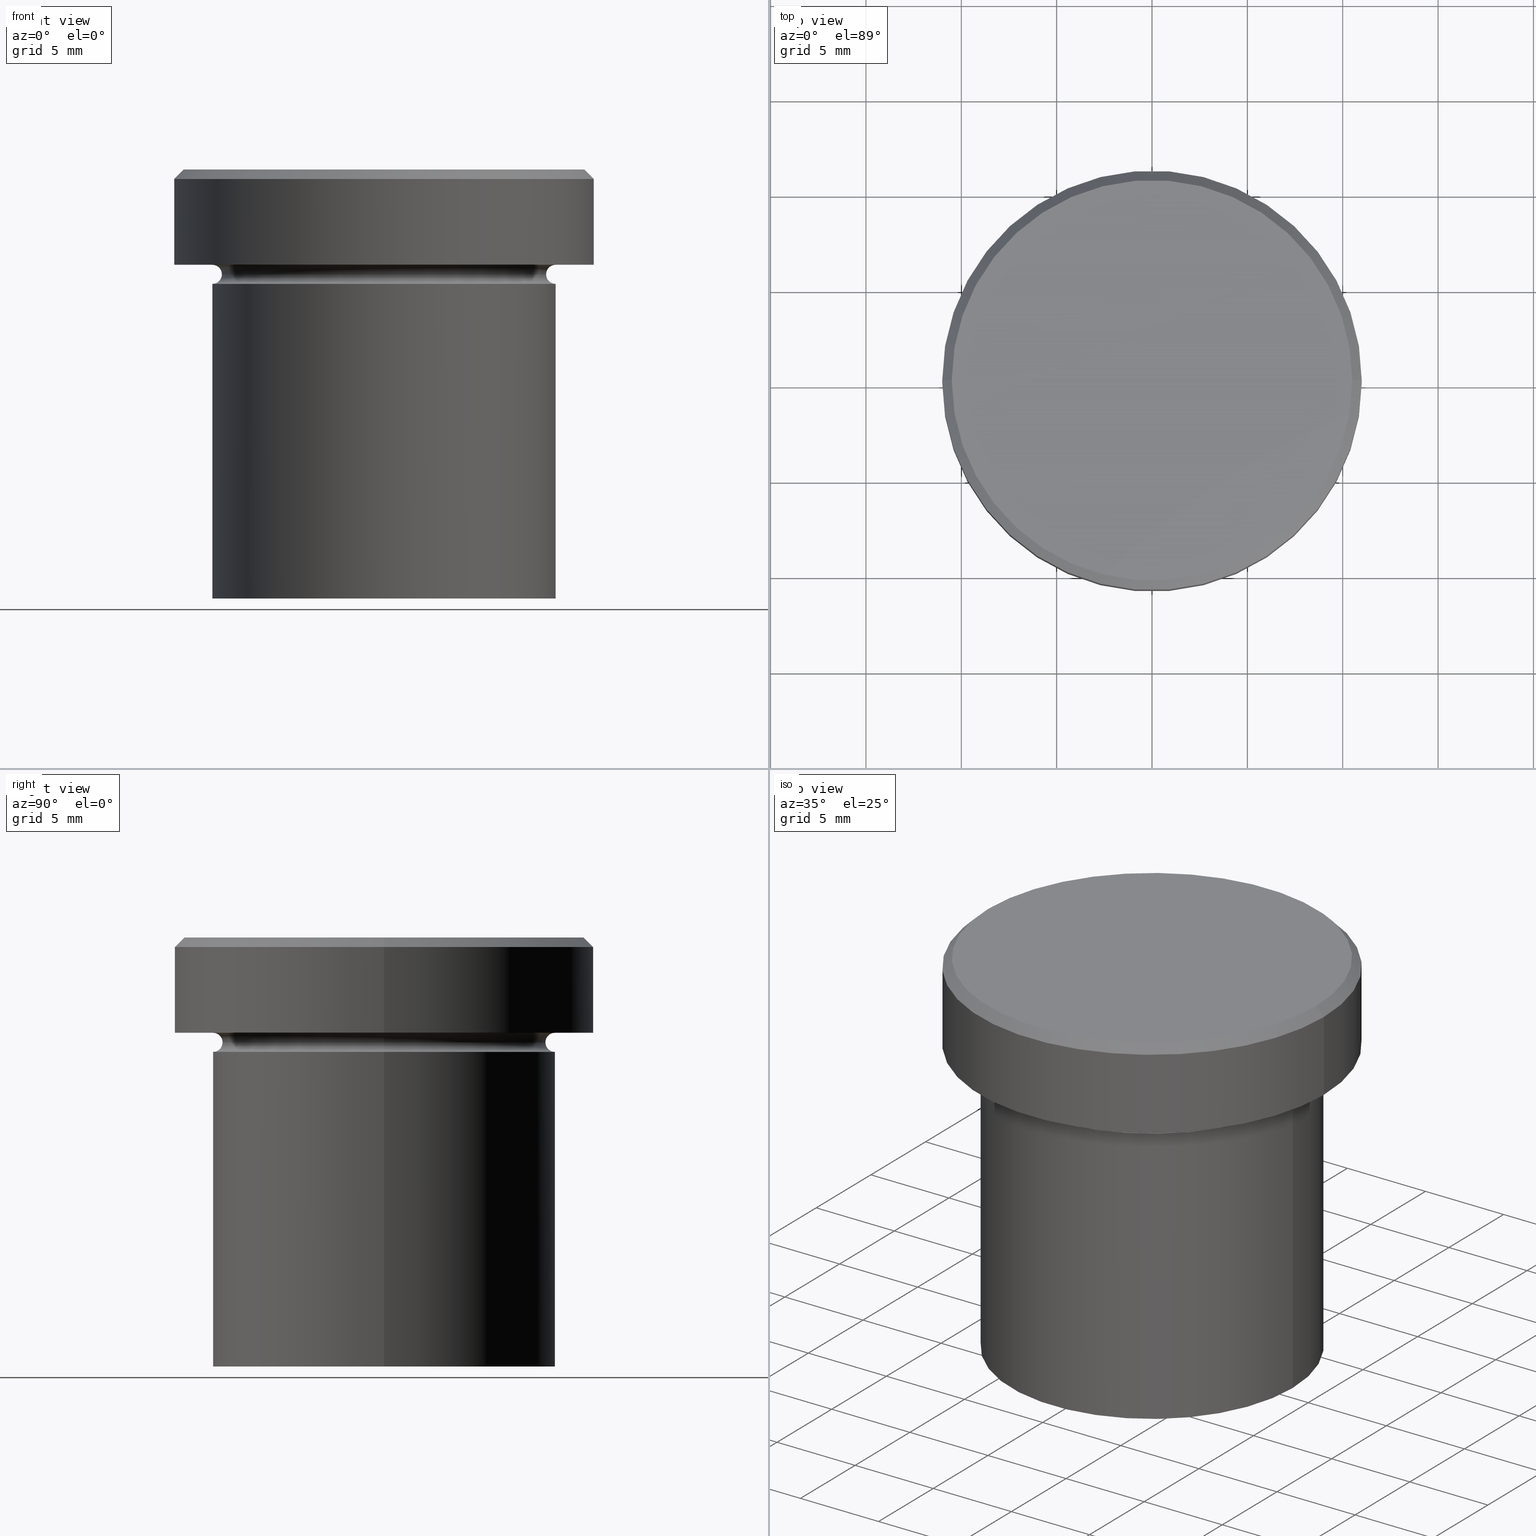
[diagram: canonical four-view strip — front | top / right | iso, engineering-drawing reading convention]
A machine part, canonical four-view strip (front | top / right | iso — engineering-drawing reading convention). The complete STEP part file that produces these views, byte-faithful:
ISO-10303-21;
HEADER;
FILE_DESCRIPTION (( 'STEP AP203' ),
    '1' );
FILE_NAME ('1125.STEP',
    '2024-01-02T22:02:27',
    ( '' ),
    ( '' ),
    'SwSTEP 2.0',
    'SolidWorks 2019',
    '' );
FILE_SCHEMA (( 'CONFIG_CONTROL_DESIGN' ));
ENDSEC;

DATA;
#1 = CARTESIAN_POINT ( 'NONE',  ( 0.000000000000000000, 0.000000000000000000, -5.000000000000000000 ) ) ;
#2 = PRODUCT_DEFINITION_FORMATION_WITH_SPECIFIED_SOURCE ( 'LIBOVOLN�', '', #42, .NOT_KNOWN. ) ;
#3 = LOCAL_TIME ( 23, 2, 27.00000000000000000, #113 ) ;
#4 = VERTEX_POINT ( 'NONE', #231 ) ;
#5 = VECTOR ( 'NONE', #340, 1000.000000000000000 ) ;
#6 = CARTESIAN_POINT ( 'NONE',  ( 9.000000000000000000, 0.000000000000000000, -22.50000000000000000 ) ) ;
#7 = DIRECTION ( 'NONE',  ( -0.000000000000000000, -0.000000000000000000, 1.000000000000000000 ) ) ;
#8 = CC_DESIGN_PERSON_AND_ORGANIZATION_ASSIGNMENT ( #116, #314, ( #195 ) ) ;
#9 = ORIENTED_EDGE ( 'NONE', *, *, #115, .T. ) ;
#10 = DIRECTION ( 'NONE',  ( 1.000000000000000000, 0.000000000000000000, 0.000000000000000000 ) ) ;
#11 = AXIS2_PLACEMENT_3D ( 'NONE', #70, #57, #294 ) ;
#12 = CARTESIAN_POINT ( 'NONE',  ( 10.49999999999999822, 1.316495309083404420E-15, 0.000000000000000000 ) ) ;
#13 = EDGE_CURVE ( 'NONE', #233, #80, #265, .T. ) ;
#14 = CARTESIAN_POINT ( 'NONE',  ( -11.00000000000000000, 1.347111479062088405E-15, -0.5000000000000004441 ) ) ;
#15 = CARTESIAN_POINT ( 'NONE',  ( 9.000000000000000000, 0.000000000000000000, 0.000000000000000000 ) ) ;
#16 = LINE ( 'NONE', #191, #5 ) ;
#17 = ORIENTED_EDGE ( 'NONE', *, *, #164, .T. ) ;
#18 = LOCAL_TIME ( 23, 2, 27.00000000000000000, #310 ) ;
#19 = CARTESIAN_POINT ( 'NONE',  ( 0.000000000000000000, 0.000000000000000000, 0.000000000000000000 ) ) ;
#20 = CARTESIAN_POINT ( 'NONE',  ( 11.00000000000000000, 0.000000000000000000, -5.000000000000000000 ) ) ;
#21 = DIRECTION ( 'NONE',  ( 1.000000000000000000, 0.000000000000000000, 0.000000000000000000 ) ) ;
#22 = CARTESIAN_POINT ( 'NONE',  ( -10.49999999999999822, 0.000000000000000000, 0.000000000000000000 ) ) ;
#23 = CYLINDRICAL_SURFACE ( 'NONE', #259, 9.000000000000000000 ) ;
#24 = EDGE_LOOP ( 'NONE', ( #72, #52 ) ) ;
#25 = CIRCLE ( 'NONE', #223, 9.000000000000000000 ) ;
#26 = ADVANCED_FACE ( 'NONE', ( #197 ), #406, .F. ) ;
#27 = EDGE_LOOP ( 'NONE', ( #56, #158 ) ) ;
#28 = DATE_AND_TIME ( #321, #39 ) ;
#29 = CONICAL_SURFACE ( 'NONE', #304, 10.49999999999999822, 0.7853981633974482790 ) ;
#30 = CARTESIAN_POINT ( 'NONE',  ( -8.499999999999998224, 1.071565949253933927E-15, -5.500000000000000000 ) ) ;
#31 = ORIENTED_EDGE ( 'NONE', *, *, #94, .F. ) ;
#32 = CARTESIAN_POINT ( 'NONE',  ( 0.000000000000000000, 0.000000000000000000, -22.50000000000000000 ) ) ;
#33 = DIRECTION ( 'NONE',  ( -1.000000000000000000, 0.000000000000000000, 0.000000000000000000 ) ) ;
#34 = CARTESIAN_POINT ( 'NONE',  ( -9.000000000000000000, 1.102182119232617714E-15, -5.500000000000000000 ) ) ;
#35 = AXIS2_PLACEMENT_3D ( 'NONE', #34, #334, #159 ) ;
#36 = ADVANCED_FACE ( 'NONE', ( #58 ), #29, .T. ) ;
#37 = ORIENTED_EDGE ( 'NONE', *, *, #317, .T. ) ;
#38 = PLANE ( 'NONE',  #397 ) ;
#39 = LOCAL_TIME ( 23, 2, 27.00000000000000000, #152 ) ;
#40 = DIRECTION ( 'NONE',  ( 1.000000000000000000, 0.000000000000000000, 0.000000000000000000 ) ) ;
#41 = EDGE_LOOP ( 'NONE', ( #205, #126, #370, #341 ) ) ;
#42 = PRODUCT ( '1125', '1125', '', ( #211 ) ) ;
#43 = FACE_OUTER_BOUND ( 'NONE', #145, .T. ) ;
#44 = DIRECTION ( 'NONE',  ( -0.000000000000000000, -0.000000000000000000, 1.000000000000000000 ) ) ;
#45 = EDGE_CURVE ( 'NONE', #80, #202, #141, .T. ) ;
#46 = CARTESIAN_POINT ( 'NONE',  ( -9.000000000000000000, 0.000000000000000000, -4.999999999999999112 ) ) ;
#47 = PERSON_AND_ORGANIZATION_ROLE ( 'creator' ) ;
#48 = DIRECTION ( 'NONE',  ( 0.000000000000000000, 0.000000000000000000, -1.000000000000000000 ) ) ;
#49 = AXIS2_PLACEMENT_3D ( 'NONE', #391, #104, #354 ) ;
#50 = APPLICATION_PROTOCOL_DEFINITION ( 'international standard', 'config_control_design', 1994, #103 ) ;
#51 = CARTESIAN_POINT ( 'NONE',  ( 0.000000000000000000, 0.000000000000000000, 0.000000000000000000 ) ) ;
#52 = ORIENTED_EDGE ( 'NONE', *, *, #303, .T. ) ;
#53 = CIRCLE ( 'NONE', #144, 0.5000000000000004441 ) ;
#54 = ORIENTED_EDGE ( 'NONE', *, *, #76, .F. ) ;
#55 = EDGE_CURVE ( 'NONE', #288, #382, #407, .T. ) ;
#56 = ORIENTED_EDGE ( 'NONE', *, *, #401, .T. ) ;
#57 = DIRECTION ( 'NONE',  ( 0.000000000000000000, 0.000000000000000000, -1.000000000000000000 ) ) ;
#58 = FACE_OUTER_BOUND ( 'NONE', #41, .T. ) ;
#59 = AXIS2_PLACEMENT_3D ( 'NONE', #305, #278, #125 ) ;
#60 = FACE_OUTER_BOUND ( 'NONE', #372, .T. ) ;
#61 = EDGE_CURVE ( 'NONE', #189, #135, #212, .T. ) ;
#62 = CIRCLE ( 'NONE', #377, 8.499999999999998224 ) ;
#63 = DIRECTION ( 'NONE',  ( 0.000000000000000000, 0.000000000000000000, -1.000000000000000000 ) ) ;
#64 = CARTESIAN_POINT ( 'NONE',  ( -9.000000000000000000, 1.102182119232617714E-15, 0.000000000000000000 ) ) ;
#65 = DIRECTION ( 'NONE',  ( 1.000000000000000000, 0.000000000000000000, 0.000000000000000000 ) ) ;
#66 = EDGE_CURVE ( 'NONE', #213, #135, #133, .T. ) ;
#67 = VECTOR ( 'NONE', #364, 1000.000000000000000 ) ;
#68 = CARTESIAN_POINT ( 'NONE',  ( 0.000000000000000000, 0.000000000000000000, 0.000000000000000000 ) ) ;
#69 = AXIS2_PLACEMENT_3D ( 'NONE', #296, #173, #150 ) ;
#70 = CARTESIAN_POINT ( 'NONE',  ( 0.000000000000000000, 0.000000000000000000, -0.5000000000000004441 ) ) ;
#71 = COORDINATED_UNIVERSAL_TIME_OFFSET ( 1, 0, .AHEAD. ) ;
#72 = ORIENTED_EDGE ( 'NONE', *, *, #98, .T. ) ;
#73 = ORIENTED_EDGE ( 'NONE', *, *, #287, .T. ) ;
#74 = CARTESIAN_POINT ( 'NONE',  ( 0.000000000000000000, 0.000000000000000000, 0.000000000000000000 ) ) ;
#75 = AXIS2_PLACEMENT_3D ( 'NONE', #381, #295, #21 ) ;
#76 = EDGE_CURVE ( 'NONE', #90, #213, #16, .T. ) ;
#77 = AXIS2_PLACEMENT_3D ( 'NONE', #96, #63, #33 ) ;
#78 = CARTESIAN_POINT ( 'NONE',  ( 9.000000000000000000, 0.000000000000000000, -5.500000000000000000 ) ) ;
#79 = DIRECTION ( 'NONE',  ( 1.000000000000000000, 0.000000000000000000, 0.000000000000000000 ) ) ;
#80 = VERTEX_POINT ( 'NONE', #83 ) ;
#81 = APPROVAL_STATUS ( 'not_yet_approved' ) ;
#82 = CARTESIAN_POINT ( 'NONE',  ( -9.000000000000000000, 1.102182119232617714E-15, -22.50000000000000000 ) ) ;
#83 = CARTESIAN_POINT ( 'NONE',  ( 8.499999999999998224, 0.000000000000000000, -5.500000000000000000 ) ) ;
#84 = APPROVAL ( #148, 'NEUR�EN�' ) ;
#85 = AXIS2_PLACEMENT_3D ( 'NONE', #163, #355, #48 ) ;
#86 = AXIS2_PLACEMENT_3D ( 'NONE', #260, #344, #349 ) ;
#87 = DIRECTION ( 'NONE',  ( -0.000000000000000000, -0.000000000000000000, 1.000000000000000000 ) ) ;
#88 = ORIENTED_EDGE ( 'NONE', *, *, #45, .T. ) ;
#89 = DIRECTION ( 'NONE',  ( 1.000000000000000000, 0.000000000000000000, 0.000000000000000000 ) ) ;
#90 = VERTEX_POINT ( 'NONE', #20 ) ;
#91 = DIRECTION ( 'NONE',  ( 1.000000000000000000, 0.000000000000000000, 0.000000000000000000 ) ) ;
#92 = CONICAL_SURFACE ( 'NONE', #162, 10.49999999999999822, 0.7853981633974482790 ) ;
#93 = ORIENTED_EDGE ( 'NONE', *, *, #98, .F. ) ;
#94 = EDGE_CURVE ( 'NONE', #80, #233, #62, .T. ) ;
#95 = CARTESIAN_POINT ( 'NONE',  ( 0.000000000000000000, 0.000000000000000000, 0.000000000000000000 ) ) ;
#96 = CARTESIAN_POINT ( 'NONE',  ( 0.000000000000000000, 0.000000000000000000, -5.500000000000000000 ) ) ;
#97 = FACE_OUTER_BOUND ( 'NONE', #339, .T. ) ;
#98 = EDGE_CURVE ( 'NONE', #153, #202, #25, .T. ) ;
#99 = ORIENTED_EDGE ( 'NONE', *, *, #55, .F. ) ;
#100 = DIRECTION ( 'NONE',  ( -0.7071067811865474617, 0.000000000000000000, -0.7071067811865474617 ) ) ;
#101 = AXIS2_PLACEMENT_3D ( 'NONE', #266, #87, #298 ) ;
#102 = CARTESIAN_POINT ( 'NONE',  ( 0.000000000000000000, 9.000000000000000000, -22.50000000000000000 ) ) ;
#103 = APPLICATION_CONTEXT ( 'configuration controlled 3d designs of mechanical parts and assemblies' ) ;
#104 = DIRECTION ( 'NONE',  ( 0.000000000000000000, 0.000000000000000000, -1.000000000000000000 ) ) ;
#105 = DATE_AND_TIME ( #165, #139 ) ;
#106 = ORIENTED_EDGE ( 'NONE', *, *, #379, .T. ) ;
#107 = DIRECTION ( 'NONE',  ( 0.000000000000000000, 0.000000000000000000, -1.000000000000000000 ) ) ;
#108 = AXIS2_PLACEMENT_3D ( 'NONE', #385, #250, #10 ) ;
#109 = PERSON_AND_ORGANIZATION_ROLE ( 'creator' ) ;
#110 = APPROVAL_PERSON_ORGANIZATION ( #394, #215, #337 ) ;
#111 = DIRECTION ( 'NONE',  ( -0.000000000000000000, -0.000000000000000000, 1.000000000000000000 ) ) ;
#112 = CLOSED_SHELL ( 'NONE', ( #307, #26, #232, #257, #177, #190, #239, #140, #352, #322, #360, #369, #36 ) ) ;
#113 = COORDINATED_UNIVERSAL_TIME_OFFSET ( 1, 0, .AHEAD. ) ;
#114 = DIRECTION ( 'NONE',  ( -0.000000000000000000, -0.000000000000000000, 1.000000000000000000 ) ) ;
#115 = EDGE_CURVE ( 'NONE', #233, #153, #263, .T. ) ;
#116 = PERSON_AND_ORGANIZATION ( #129, #168 ) ;
#117 = EDGE_CURVE ( 'NONE', #267, #189, #366, .T. ) ;
#118 = APPROVAL_PERSON_ORGANIZATION ( #318, #299, #291 ) ;
#119 = ORIENTED_EDGE ( 'NONE', *, *, #94, .T. ) ;
#120 = CARTESIAN_POINT ( 'NONE',  ( 0.000000000000000000, 0.000000000000000000, -5.500000000000000000 ) ) ;
#121 = MANIFOLD_SOLID_BREP ( 'Zkosen�1', #112 ) ;
#122 = ORIENTED_EDGE ( 'NONE', *, *, #281, .T. ) ;
#123 = ADVANCED_BREP_SHAPE_REPRESENTATION ( '1125', ( #121, #302 ), #174 ) ;
#124 = DIRECTION ( 'NONE',  ( 1.000000000000000000, 0.000000000000000000, 0.000000000000000000 ) ) ;
#125 = DIRECTION ( 'NONE',  ( 1.000000000000000000, 0.000000000000000000, 0.000000000000000000 ) ) ;
#126 = ORIENTED_EDGE ( 'NONE', *, *, #401, .F. ) ;
#127 = AXIS2_PLACEMENT_3D ( 'NONE', #204, #332, #209 ) ;
#128 = TOROIDAL_SURFACE ( 'NONE', #264, 9.000000000000000000, 0.5000000000000000000 ) ;
#129 = PERSON ( 'NEUR�EN�', 'NEUR�EN�', 'NEUR�EN�', ('NEUR�EN�'), ('NEUR�EN�'), ('NEUR�EN�') ) ;
#130 = CC_DESIGN_APPROVAL ( #84, ( #2 ) ) ;
#131 = DIRECTION ( 'NONE',  ( -1.000000000000000000, 0.000000000000000000, 0.000000000000000000 ) ) ;
#132 = CARTESIAN_POINT ( 'NONE',  ( 0.000000000000000000, 11.00000000000000000, -5.000000000000000000 ) ) ;
#133 = CIRCLE ( 'NONE', #11, 11.00000000000000000 ) ;
#134 = CC_DESIGN_DATE_AND_TIME_ASSIGNMENT ( #262, #199, ( #386 ) ) ;
#135 = VERTEX_POINT ( 'NONE', #14 ) ;
#136 = PERSON_AND_ORGANIZATION ( #129, #168 ) ;
#137 = FACE_OUTER_BOUND ( 'NONE', #356, .T. ) ;
#138 = PERSON_AND_ORGANIZATION ( #129, #168 ) ;
#139 = LOCAL_TIME ( 23, 2, 27.00000000000000000, #71 ) ;
#140 = ADVANCED_FACE ( 'NONE', ( #137 ), #320, .T. ) ;
#141 = CIRCLE ( 'NONE', #338, 0.5000000000000004441 ) ;
#142 = ORIENTED_EDGE ( 'NONE', *, *, #379, .F. ) ;
#143 = AXIS2_PLACEMENT_3D ( 'NONE', #19, #359, #89 ) ;
#144 = AXIS2_PLACEMENT_3D ( 'NONE', #78, #398, #258 ) ;
#145 = EDGE_LOOP ( 'NONE', ( #226, #297, #309, #311 ) ) ;
#146 = EDGE_LOOP ( 'NONE', ( #283, #88, #93, #149 ) ) ;
#147 = LINE ( 'NONE', #64, #155 ) ;
#148 = APPROVAL_STATUS ( 'not_yet_approved' ) ;
#149 = ORIENTED_EDGE ( 'NONE', *, *, #115, .F. ) ;
#150 = DIRECTION ( 'NONE',  ( 1.000000000000000000, 0.000000000000000000, 0.000000000000000000 ) ) ;
#151 = CC_DESIGN_PERSON_AND_ORGANIZATION_ASSIGNMENT ( #289, #47, ( #386 ) ) ;
#152 = COORDINATED_UNIVERSAL_TIME_OFFSET ( 1, 0, .AHEAD. ) ;
#153 = VERTEX_POINT ( 'NONE', #46 ) ;
#154 = DIRECTION ( 'NONE',  ( -0.000000000000000000, -0.000000000000000000, 1.000000000000000000 ) ) ;
#155 = VECTOR ( 'NONE', #182, 1000.000000000000000 ) ;
#156 = CARTESIAN_POINT ( 'NONE',  ( 0.000000000000000000, 0.000000000000000000, 0.000000000000000000 ) ) ;
#157 = PLANE ( 'NONE',  #301 ) ;
#158 = ORIENTED_EDGE ( 'NONE', *, *, #117, .T. ) ;
#159 = DIRECTION ( 'NONE',  ( -1.000000000000000000, 1.224646799147353454E-16, 0.000000000000000000 ) ) ;
#160 = APPROVAL_DATE_TIME ( #105, #299 ) ;
#161 = DIRECTION ( 'NONE',  ( -0.000000000000000000, -0.000000000000000000, 1.000000000000000000 ) ) ;
#162 = AXIS2_PLACEMENT_3D ( 'NONE', #68, #277, #240 ) ;
#163 = CARTESIAN_POINT ( 'NONE',  ( -9.000000000000000000, 0.000000000000000000, -5.500000000000000000 ) ) ;
#164 = EDGE_CURVE ( 'NONE', #382, #4, #292, .T. ) ;
#165 = CALENDAR_DATE ( 2024, 2, 1 ) ;
#166 = FACE_OUTER_BOUND ( 'NONE', #373, .T. ) ;
#167 =( NAMED_UNIT ( * ) PLANE_ANGLE_UNIT ( ) SI_UNIT ( $, .RADIAN. ) );
#168 = ORGANIZATION ( 'NEUR�EN�', 'NEUR�EN�', '' ) ;
#169 = DATE_AND_TIME ( #361, #18 ) ;
#170 = CALENDAR_DATE ( 2024, 2, 1 ) ;
#171 = DIRECTION ( 'NONE',  ( -1.000000000000000000, 0.000000000000000000, 0.000000000000000000 ) ) ;
#172 = PRODUCT_RELATED_PRODUCT_CATEGORY ( 'detail', '', ( #42 ) ) ;
#173 = DIRECTION ( 'NONE',  ( -0.000000000000000000, -0.000000000000000000, 1.000000000000000000 ) ) ;
#174 =( GEOMETRIC_REPRESENTATION_CONTEXT ( 3 ) GLOBAL_UNCERTAINTY_ASSIGNED_CONTEXT ( ( #241 ) ) GLOBAL_UNIT_ASSIGNED_CONTEXT ( ( #387, #167, #193 ) ) REPRESENTATION_CONTEXT ( 'NONE', 'WORKASPACE' ) );
#175 = DIRECTION ( 'NONE',  ( 0.7071067811865474617, 8.659560562354932858E-17, -0.7071067811865474617 ) ) ;
#176 = EDGE_LOOP ( 'NONE', ( #251, #323, #122, #365 ) ) ;
#177 = ADVANCED_FACE ( 'NONE', ( #60 ), #273, .T. ) ;
#178 = PLANE ( 'NONE',  #59 ) ;
#179 = VECTOR ( 'NONE', #175, 1000.000000000000114 ) ;
#180 = LINE ( 'NONE', #274, #179 ) ;
#181 = DIRECTION ( 'NONE',  ( -1.000000000000000000, 0.000000000000000000, 0.000000000000000000 ) ) ;
#182 = DIRECTION ( 'NONE',  ( -0.000000000000000000, -0.000000000000000000, 1.000000000000000000 ) ) ;
#183 = EDGE_CURVE ( 'NONE', #268, #90, #336, .T. ) ;
#184 = LINE ( 'NONE', #312, #285 ) ;
#185 = APPLICATION_PROTOCOL_DEFINITION ( 'international standard', 'config_control_design', 1994, #290 ) ;
#186 = CARTESIAN_POINT ( 'NONE',  ( -10.49999999999999822, 0.000000000000000000, 0.000000000000000000 ) ) ;
#187 = ORIENTED_EDGE ( 'NONE', *, *, #313, .T. ) ;
#188 = FACE_BOUND ( 'NONE', #24, .T. ) ;
#189 = VERTEX_POINT ( 'NONE', #22 ) ;
#190 = ADVANCED_FACE ( 'NONE', ( #97 ), #157, .T. ) ;
#191 = CARTESIAN_POINT ( 'NONE',  ( 11.00000000000000000, 0.000000000000000000, 0.000000000000000000 ) ) ;
#192 = TOROIDAL_SURFACE ( 'NONE', #127, 9.000000000000000000, 0.5000000000000000000 ) ;
#193 =( NAMED_UNIT ( * ) SI_UNIT ( $, .STERADIAN. ) SOLID_ANGLE_UNIT ( ) );
#194 = PRODUCT_DEFINITION_SHAPE ( 'NONE', 'NONE',  #386 ) ;
#195 = SECURITY_CLASSIFICATION ( '', '', #252 ) ;
#196 = CARTESIAN_POINT ( 'NONE',  ( 0.000000000000000000, 0.000000000000000000, -5.000000000000000000 ) ) ;
#197 = FACE_OUTER_BOUND ( 'NONE', #146, .T. ) ;
#198 = ORIENTED_EDGE ( 'NONE', *, *, #45, .F. ) ;
#199 = DATE_TIME_ROLE ( 'creation_date' ) ;
#200 = CIRCLE ( 'NONE', #101, 10.49999999999999822 ) ;
#201 = EDGE_CURVE ( 'NONE', #267, #213, #180, .T. ) ;
#202 = VERTEX_POINT ( 'NONE', #229 ) ;
#203 = CARTESIAN_POINT ( 'NONE',  ( 0.000000000000000000, 0.000000000000000000, -5.500000000000000000 ) ) ;
#204 = CARTESIAN_POINT ( 'NONE',  ( 0.000000000000000000, 0.000000000000000000, -5.500000000000000000 ) ) ;
#205 = ORIENTED_EDGE ( 'NONE', *, *, #201, .F. ) ;
#206 = FACE_OUTER_BOUND ( 'NONE', #176, .T. ) ;
#207 = DESIGN_CONTEXT ( 'detailed design', #103, 'design' ) ;
#208 = EDGE_LOOP ( 'NONE', ( #198, #119, #9, #315 ) ) ;
#209 = DIRECTION ( 'NONE',  ( 1.000000000000000000, 0.000000000000000000, 0.000000000000000000 ) ) ;
#210 = CC_DESIGN_PERSON_AND_ORGANIZATION_ASSIGNMENT ( #136, #109, ( #2 ) ) ;
#211 = MECHANICAL_CONTEXT ( 'NONE', #290, 'mechanical' ) ;
#212 = LINE ( 'NONE', #186, #351 ) ;
#213 = VERTEX_POINT ( 'NONE', #269 ) ;
#214 = LOCAL_TIME ( 23, 2, 27.00000000000000000, #222 ) ;
#215 = APPROVAL ( #383, 'NEUR�EN�' ) ;
#216 = ORIENTED_EDGE ( 'NONE', *, *, #313, .F. ) ;
#217 = ORIENTED_EDGE ( 'NONE', *, *, #244, .F. ) ;
#218 = FACE_OUTER_BOUND ( 'NONE', #300, .T. ) ;
#219 = AXIS2_PLACEMENT_3D ( 'NONE', #51, #392, #79 ) ;
#220 = AXIS2_PLACEMENT_3D ( 'NONE', #1, #378, #65 ) ;
#221 = CIRCLE ( 'NONE', #35, 0.5000000000000004441 ) ;
#222 = COORDINATED_UNIVERSAL_TIME_OFFSET ( 1, 0, .AHEAD. ) ;
#223 = AXIS2_PLACEMENT_3D ( 'NONE', #196, #44, #254 ) ;
#224 = CARTESIAN_POINT ( 'NONE',  ( -11.00000000000000000, 1.347111479062088405E-15, -5.000000000000000000 ) ) ;
#225 = APPROVAL_ROLE ( '' ) ;
#226 = ORIENTED_EDGE ( 'NONE', *, *, #117, .F. ) ;
#227 = CC_DESIGN_PERSON_AND_ORGANIZATION_ASSIGNMENT ( #350, #256, ( #2 ) ) ;
#228 = ORIENTED_EDGE ( 'NONE', *, *, #76, .T. ) ;
#229 = CARTESIAN_POINT ( 'NONE',  ( 9.000000000000000000, 1.102182119232617714E-15, -4.999999999999999112 ) ) ;
#230 = ORIENTED_EDGE ( 'NONE', *, *, #183, .T. ) ;
#231 = CARTESIAN_POINT ( 'NONE',  ( 9.000000000000000000, 0.000000000000000000, -6.000000000000000000 ) ) ;
#232 = ADVANCED_FACE ( 'NONE', ( #206 ), #192, .F. ) ;
#233 = VERTEX_POINT ( 'NONE', #30 ) ;
#234 = CIRCLE ( 'NONE', #220, 11.00000000000000000 ) ;
#235 = DIRECTION ( 'NONE',  ( -0.000000000000000000, -0.000000000000000000, 1.000000000000000000 ) ) ;
#236 = ORIENTED_EDGE ( 'NONE', *, *, #66, .T. ) ;
#237 = CARTESIAN_POINT ( 'NONE',  ( 0.000000000000000000, 0.000000000000000000, -22.50000000000000000 ) ) ;
#238 = DIRECTION ( 'NONE',  ( 0.000000000000000000, 0.000000000000000000, 1.000000000000000000 ) ) ;
#239 = ADVANCED_FACE ( 'NONE', ( #308 ), #178, .T. ) ;
#240 = DIRECTION ( 'NONE',  ( -1.000000000000000000, 0.000000000000000000, 0.000000000000000000 ) ) ;
#241 = UNCERTAINTY_MEASURE_WITH_UNIT (LENGTH_MEASURE( 1.000000000000000082E-05 ), #387, 'distance_accuracy_value', 'NONE');
#242 = AXIS2_PLACEMENT_3D ( 'NONE', #245, #111, #131 ) ;
#243 = PERSON_AND_ORGANIZATION ( #129, #168 ) ;
#244 = EDGE_CURVE ( 'NONE', #382, #288, #347, .T. ) ;
#245 = CARTESIAN_POINT ( 'NONE',  ( 0.000000000000000000, 0.000000000000000000, -5.000000000000000000 ) ) ;
#246 = CARTESIAN_POINT ( 'NONE',  ( 0.000000000000000000, 0.000000000000000000, -5.500000000000000000 ) ) ;
#247 = ORIENTED_EDGE ( 'NONE', *, *, #281, .F. ) ;
#248 = APPROVAL_DATE_TIME ( #28, #84 ) ;
#249 = AXIS2_PLACEMENT_3D ( 'NONE', #237, #7, #276 ) ;
#250 = DIRECTION ( 'NONE',  ( -0.000000000000000000, -0.000000000000000000, 1.000000000000000000 ) ) ;
#251 = ORIENTED_EDGE ( 'NONE', *, *, #13, .F. ) ;
#252 = SECURITY_CLASSIFICATION_LEVEL ( 'unclassified' ) ;
#253 = CARTESIAN_POINT ( 'NONE',  ( -9.000000000000000000, 1.102182119232617714E-15, -6.000000000000000000 ) ) ;
#254 = DIRECTION ( 'NONE',  ( -1.000000000000000000, 0.000000000000000000, 0.000000000000000000 ) ) ;
#255 = DIRECTION ( 'NONE',  ( -0.000000000000000000, -0.000000000000000000, 1.000000000000000000 ) ) ;
#256 = PERSON_AND_ORGANIZATION_ROLE ( 'design_supplier' ) ;
#257 = ADVANCED_FACE ( 'NONE', ( #342 ), #23, .T. ) ;
#258 = DIRECTION ( 'NONE',  ( 0.000000000000000000, 0.000000000000000000, -1.000000000000000000 ) ) ;
#259 = AXIS2_PLACEMENT_3D ( 'NONE', #74, #114, #286 ) ;
#260 = CARTESIAN_POINT ( 'NONE',  ( 0.000000000000000000, 0.000000000000000000, 0.000000000000000000 ) ) ;
#261 = ORIENTED_EDGE ( 'NONE', *, *, #396, .F. ) ;
#262 = DATE_AND_TIME ( #170, #3 ) ;
#263 = CIRCLE ( 'NONE', #85, 0.5000000000000004441 ) ;
#264 = AXIS2_PLACEMENT_3D ( 'NONE', #120, #371, #171 ) ;
#265 = CIRCLE ( 'NONE', #402, 8.499999999999998224 ) ;
#266 = CARTESIAN_POINT ( 'NONE',  ( 0.000000000000000000, 0.000000000000000000, 0.000000000000000000 ) ) ;
#267 = VERTEX_POINT ( 'NONE', #12 ) ;
#268 = VERTEX_POINT ( 'NONE', #224 ) ;
#269 = CARTESIAN_POINT ( 'NONE',  ( 11.00000000000000000, 0.000000000000000000, -0.5000000000000004441 ) ) ;
#270 = ORIENTED_EDGE ( 'NONE', *, *, #244, .T. ) ;
#271 = CC_DESIGN_SECURITY_CLASSIFICATION ( #195, ( #2 ) ) ;
#272 = DIRECTION ( 'NONE',  ( -0.000000000000000000, -0.000000000000000000, 1.000000000000000000 ) ) ;
#273 = CYLINDRICAL_SURFACE ( 'NONE', #376, 11.00000000000000000 ) ;
#274 = CARTESIAN_POINT ( 'NONE',  ( 10.49999999999999822, 1.285879139104720633E-15, 0.000000000000000000 ) ) ;
#275 = VERTEX_POINT ( 'NONE', #253 ) ;
#276 = DIRECTION ( 'NONE',  ( 1.000000000000000000, 0.000000000000000000, 0.000000000000000000 ) ) ;
#277 = DIRECTION ( 'NONE',  ( 0.000000000000000000, 0.000000000000000000, -1.000000000000000000 ) ) ;
#278 = DIRECTION ( 'NONE',  ( 0.000000000000000000, -0.000000000000000000, 1.000000000000000000 ) ) ;
#279 = CIRCLE ( 'NONE', #108, 9.000000000000000000 ) ;
#280 = APPROVAL_PERSON_ORGANIZATION ( #243, #84, #225 ) ;
#281 = EDGE_CURVE ( 'NONE', #275, #4, #279, .T. ) ;
#282 = DIRECTION ( 'NONE',  ( -1.224646799147353207E-16, 1.000000000000000000, 0.000000000000000000 ) ) ;
#283 = ORIENTED_EDGE ( 'NONE', *, *, #13, .T. ) ;
#284 = SHAPE_DEFINITION_REPRESENTATION ( #194, #123 ) ;
#285 = VECTOR ( 'NONE', #255, 1000.000000000000000 ) ;
#286 = DIRECTION ( 'NONE',  ( 1.000000000000000000, 0.000000000000000000, 0.000000000000000000 ) ) ;
#287 = EDGE_CURVE ( 'NONE', #135, #213, #324, .T. ) ;
#288 = VERTEX_POINT ( 'NONE', #82 ) ;
#289 = PERSON_AND_ORGANIZATION ( #129, #168 ) ;
#290 = APPLICATION_CONTEXT ( 'configuration controlled 3d designs of mechanical parts and assemblies' ) ;
#291 = APPROVAL_ROLE ( '' ) ;
#292 = LINE ( 'NONE', #15, #67 ) ;
#293 = CC_DESIGN_PERSON_AND_ORGANIZATION_ASSIGNMENT ( #138, #357, ( #42 ) ) ;
#294 = DIRECTION ( 'NONE',  ( 1.000000000000000000, 0.000000000000000000, 0.000000000000000000 ) ) ;
#295 = DIRECTION ( 'NONE',  ( -0.000000000000000000, -0.000000000000000000, 1.000000000000000000 ) ) ;
#296 = CARTESIAN_POINT ( 'NONE',  ( 0.000000000000000000, 0.000000000000000000, -5.500000000000000000 ) ) ;
#297 = ORIENTED_EDGE ( 'NONE', *, *, #201, .T. ) ;
#298 = DIRECTION ( 'NONE',  ( 1.000000000000000000, 0.000000000000000000, 0.000000000000000000 ) ) ;
#299 = APPROVAL ( #81, 'NEUR�EN�' ) ;
#300 = EDGE_LOOP ( 'NONE', ( #142, #368, #17, #247 ) ) ;
#301 = AXIS2_PLACEMENT_3D ( 'NONE', #102, #408, #330 ) ;
#302 = AXIS2_PLACEMENT_3D ( 'NONE', #331, #238, #374 ) ;
#303 = EDGE_CURVE ( 'NONE', #202, #153, #348, .T. ) ;
#304 = AXIS2_PLACEMENT_3D ( 'NONE', #156, #409, #181 ) ;
#305 = CARTESIAN_POINT ( 'NONE',  ( 0.000000000000000000, 0.000000000000000000, 0.000000000000000000 ) ) ;
#306 = CARTESIAN_POINT ( 'NONE',  ( 9.000000000000000000, 1.102182119232617714E-15, -5.500000000000000000 ) ) ;
#307 = ADVANCED_FACE ( 'NONE', ( #43 ), #92, .T. ) ;
#308 = FACE_OUTER_BOUND ( 'NONE', #27, .T. ) ;
#309 = ORIENTED_EDGE ( 'NONE', *, *, #287, .F. ) ;
#310 = COORDINATED_UNIVERSAL_TIME_OFFSET ( 1, 0, .AHEAD. ) ;
#311 = ORIENTED_EDGE ( 'NONE', *, *, #61, .F. ) ;
#312 = CARTESIAN_POINT ( 'NONE',  ( -11.00000000000000000, 1.347111479062088405E-15, 0.000000000000000000 ) ) ;
#313 = EDGE_CURVE ( 'NONE', #90, #268, #234, .T. ) ;
#314 = PERSON_AND_ORGANIZATION_ROLE ( 'classification_officer' ) ;
#315 = ORIENTED_EDGE ( 'NONE', *, *, #303, .F. ) ;
#316 = ORIENTED_EDGE ( 'NONE', *, *, #164, .F. ) ;
#317 = EDGE_CURVE ( 'NONE', #268, #135, #184, .T. ) ;
#318 = PERSON_AND_ORGANIZATION ( #129, #168 ) ;
#319 = CC_DESIGN_APPROVAL ( #299, ( #195 ) ) ;
#320 = CYLINDRICAL_SURFACE ( 'NONE', #219, 11.00000000000000000 ) ;
#321 = CALENDAR_DATE ( 2024, 2, 1 ) ;
#322 = ADVANCED_FACE ( 'NONE', ( #218 ), #395, .T. ) ;
#323 = ORIENTED_EDGE ( 'NONE', *, *, #404, .T. ) ;
#324 = CIRCLE ( 'NONE', #49, 11.00000000000000000 ) ;
#325 = DIRECTION ( 'NONE',  ( 1.000000000000000000, 0.000000000000000000, 0.000000000000000000 ) ) ;
#326 = CC_DESIGN_APPROVAL ( #215, ( #386 ) ) ;
#327 = ORIENTED_EDGE ( 'NONE', *, *, #404, .F. ) ;
#328 = DIRECTION ( 'NONE',  ( -0.000000000000000000, -0.000000000000000000, 1.000000000000000000 ) ) ;
#329 = CC_DESIGN_DATE_AND_TIME_ASSIGNMENT ( #353, #390, ( #195 ) ) ;
#330 = DIRECTION ( 'NONE',  ( -1.000000000000000000, 0.000000000000000000, -0.000000000000000000 ) ) ;
#331 = CARTESIAN_POINT ( 'NONE',  ( 0.000000000000000000, 0.000000000000000000, 0.000000000000000000 ) ) ;
#332 = DIRECTION ( 'NONE',  ( -0.000000000000000000, -0.000000000000000000, 1.000000000000000000 ) ) ;
#333 = CIRCLE ( 'NONE', #75, 9.000000000000000000 ) ;
#334 = DIRECTION ( 'NONE',  ( 1.224646799147353207E-16, 1.000000000000000000, 0.000000000000000000 ) ) ;
#335 = EDGE_CURVE ( 'NONE', #80, #4, #53, .T. ) ;
#336 = CIRCLE ( 'NONE', #358, 11.00000000000000000 ) ;
#337 = APPROVAL_ROLE ( '' ) ;
#338 = AXIS2_PLACEMENT_3D ( 'NONE', #306, #282, #384 ) ;
#339 = EDGE_LOOP ( 'NONE', ( #217, #99 ) ) ;
#340 = DIRECTION ( 'NONE',  ( -0.000000000000000000, -0.000000000000000000, 1.000000000000000000 ) ) ;
#341 = ORIENTED_EDGE ( 'NONE', *, *, #66, .F. ) ;
#342 = FACE_OUTER_BOUND ( 'NONE', #375, .T. ) ;
#343 = ORIENTED_EDGE ( 'NONE', *, *, #183, .F. ) ;
#344 = DIRECTION ( 'NONE',  ( -0.000000000000000000, -0.000000000000000000, 1.000000000000000000 ) ) ;
#345 = AXIS2_PLACEMENT_3D ( 'NONE', #32, #154, #389 ) ;
#346 = DIRECTION ( 'NONE',  ( -1.000000000000000000, 0.000000000000000000, -0.000000000000000000 ) ) ;
#347 = CIRCLE ( 'NONE', #345, 9.000000000000000000 ) ;
#348 = CIRCLE ( 'NONE', #242, 9.000000000000000000 ) ;
#349 = DIRECTION ( 'NONE',  ( 1.000000000000000000, 0.000000000000000000, 0.000000000000000000 ) ) ;
#350 = PERSON_AND_ORGANIZATION ( #129, #168 ) ;
#351 = VECTOR ( 'NONE', #100, 1000.000000000000114 ) ;
#352 = ADVANCED_FACE ( 'NONE', ( #188, #393 ), #38, .T. ) ;
#353 = DATE_AND_TIME ( #388, #214 ) ;
#354 = DIRECTION ( 'NONE',  ( 1.000000000000000000, 0.000000000000000000, 0.000000000000000000 ) ) ;
#355 = DIRECTION ( 'NONE',  ( -0.000000000000000000, -1.000000000000000000, -0.000000000000000000 ) ) ;
#356 = EDGE_LOOP ( 'NONE', ( #400, #230, #228, #236 ) ) ;
#357 = PERSON_AND_ORGANIZATION_ROLE ( 'design_owner' ) ;
#358 = AXIS2_PLACEMENT_3D ( 'NONE', #367, #272, #124 ) ;
#359 = DIRECTION ( 'NONE',  ( -0.000000000000000000, -0.000000000000000000, 1.000000000000000000 ) ) ;
#360 = ADVANCED_FACE ( 'NONE', ( #166 ), #405, .F. ) ;
#361 = CALENDAR_DATE ( 2024, 2, 1 ) ;
#362 = EDGE_LOOP ( 'NONE', ( #216, #343 ) ) ;
#363 = FACE_OUTER_BOUND ( 'NONE', #208, .T. ) ;
#364 = DIRECTION ( 'NONE',  ( -0.000000000000000000, -0.000000000000000000, 1.000000000000000000 ) ) ;
#365 = ORIENTED_EDGE ( 'NONE', *, *, #335, .F. ) ;
#366 = CIRCLE ( 'NONE', #143, 10.49999999999999822 ) ;
#367 = CARTESIAN_POINT ( 'NONE',  ( 0.000000000000000000, 0.000000000000000000, -5.000000000000000000 ) ) ;
#368 = ORIENTED_EDGE ( 'NONE', *, *, #55, .T. ) ;
#369 = ADVANCED_FACE ( 'NONE', ( #363 ), #128, .F. ) ;
#370 = ORIENTED_EDGE ( 'NONE', *, *, #61, .T. ) ;
#371 = DIRECTION ( 'NONE',  ( 0.000000000000000000, 0.000000000000000000, -1.000000000000000000 ) ) ;
#372 = EDGE_LOOP ( 'NONE', ( #187, #37, #73, #54 ) ) ;
#373 = EDGE_LOOP ( 'NONE', ( #327, #31, #403, #380 ) ) ;
#374 = DIRECTION ( 'NONE',  ( 1.000000000000000000, 0.000000000000000000, 0.000000000000000000 ) ) ;
#375 = EDGE_LOOP ( 'NONE', ( #270, #106, #261, #316 ) ) ;
#376 = AXIS2_PLACEMENT_3D ( 'NONE', #95, #235, #91 ) ;
#377 = AXIS2_PLACEMENT_3D ( 'NONE', #246, #161, #40 ) ;
#378 = DIRECTION ( 'NONE',  ( -0.000000000000000000, -0.000000000000000000, 1.000000000000000000 ) ) ;
#379 = EDGE_CURVE ( 'NONE', #288, #275, #147, .T. ) ;
#380 = ORIENTED_EDGE ( 'NONE', *, *, #396, .T. ) ;
#381 = CARTESIAN_POINT ( 'NONE',  ( 0.000000000000000000, 0.000000000000000000, -6.000000000000000000 ) ) ;
#382 = VERTEX_POINT ( 'NONE', #6 ) ;
#383 = APPROVAL_STATUS ( 'not_yet_approved' ) ;
#384 = DIRECTION ( 'NONE',  ( -1.000000000000000000, -1.224646799147353454E-16, 0.000000000000000000 ) ) ;
#385 = CARTESIAN_POINT ( 'NONE',  ( 0.000000000000000000, 0.000000000000000000, -6.000000000000000000 ) ) ;
#386 = PRODUCT_DEFINITION ( 'NEZN�M�', '', #2, #207 ) ;
#387 =( LENGTH_UNIT ( ) NAMED_UNIT ( * ) SI_UNIT ( .MILLI., .METRE. ) );
#388 = CALENDAR_DATE ( 2024, 2, 1 ) ;
#389 = DIRECTION ( 'NONE',  ( 1.000000000000000000, 0.000000000000000000, 0.000000000000000000 ) ) ;
#390 = DATE_TIME_ROLE ( 'classification_date' ) ;
#391 = CARTESIAN_POINT ( 'NONE',  ( 0.000000000000000000, 0.000000000000000000, -0.5000000000000004441 ) ) ;
#392 = DIRECTION ( 'NONE',  ( -0.000000000000000000, -0.000000000000000000, 1.000000000000000000 ) ) ;
#393 = FACE_OUTER_BOUND ( 'NONE', #362, .T. ) ;
#394 = PERSON_AND_ORGANIZATION ( #129, #168 ) ;
#395 = CYLINDRICAL_SURFACE ( 'NONE', #86, 9.000000000000000000 ) ;
#396 = EDGE_CURVE ( 'NONE', #4, #275, #333, .T. ) ;
#397 = AXIS2_PLACEMENT_3D ( 'NONE', #132, #107, #346 ) ;
#398 = DIRECTION ( 'NONE',  ( 0.000000000000000000, -1.000000000000000000, 0.000000000000000000 ) ) ;
#399 = APPROVAL_DATE_TIME ( #169, #215 ) ;
#400 = ORIENTED_EDGE ( 'NONE', *, *, #317, .F. ) ;
#401 = EDGE_CURVE ( 'NONE', #189, #267, #200, .T. ) ;
#402 = AXIS2_PLACEMENT_3D ( 'NONE', #203, #328, #325 ) ;
#403 = ORIENTED_EDGE ( 'NONE', *, *, #335, .T. ) ;
#404 = EDGE_CURVE ( 'NONE', #233, #275, #221, .T. ) ;
#405 = TOROIDAL_SURFACE ( 'NONE', #69, 9.000000000000000000, 0.5000000000000000000 ) ;
#406 = TOROIDAL_SURFACE ( 'NONE', #77, 9.000000000000000000, 0.5000000000000000000 ) ;
#407 = CIRCLE ( 'NONE', #249, 9.000000000000000000 ) ;
#408 = DIRECTION ( 'NONE',  ( 0.000000000000000000, 0.000000000000000000, -1.000000000000000000 ) ) ;
#409 = DIRECTION ( 'NONE',  ( 0.000000000000000000, 0.000000000000000000, -1.000000000000000000 ) ) ;
ENDSEC;
END-ISO-10303-21;
